MODEL shahidspwmthreephase
KIND model
BLOCK [Goto]  
  GotoTag = Q4
  SID = 89
  TagVisibility = local
BLOCK [Goto]   
  GotoTag = Q1
  SID = 87
  TagVisibility = local
BLOCK [Goto]             
  GotoTag = Q6
  SID = 341
  TagVisibility = local
BLOCK [Goto]   \n 
  GotoTag = Q2
  SID = 338
  TagVisibility = local
BLOCK [Goto]  \n 
  GotoTag = Q5
  SID = 339
  TagVisibility = local
BLOCK [Goto]  \n \n 
  GotoTag = Q3
  SID = 340
  TagVisibility = local
BLOCK [Scope]  current
  DataFormat = StructureWithTime
  Floating = off
  NumInputPorts = 3
  Ports = [3]
  SID = 460
  SampleTime = 0
  YMax = 0.8~0.7~0.7
  YMin = -0.7~-0.8~-0.7
  ZoomMode = xonly
BLOCK [Reference] DC Voltage Source  REF=powerlib/Electrical\nSources/DC Voltage Source
  Amplitude = 400
  DialogController = POWERSYS.PowerSysDialog
  FunctionWithSeparateData = off
  Measurements = Voltage
  Ports = [0, 0, 0, 0, 0, 1, 1]
  RTWMemSecDataConstants = Inherit from model
  RTWMemSecDataInternal = Inherit from model
  RTWMemSecDataParameters = Inherit from model
  RTWMemSecFuncExecute = Inherit from model
  RTWMemSecFuncInitTerm = Inherit from model
  SID = 32
  ShowPortLabels = FromPortIcon
  SourceBlock = powerlib/Electrical\nSources/DC Voltage Source
  SourceType = DC Voltage Source
  SystemSampleTime = -1
BLOCK [Reference] Fourier  REF=powerlib_extras/Measurements/Fourier
  DialogController = POWERSYS.PowerSysDialog
  FunctionWithSeparateData = off
  Ports = [1, 2]
  RTWMemSecDataConstants = Inherit from model
  RTWMemSecDataInternal = Inherit from model
  RTWMemSecDataParameters = Inherit from model
  RTWMemSecFuncExecute = Inherit from model
  RTWMemSecFuncInitTerm = Inherit from model
  SID = 237
  ShowPortLabels = FromPortIcon
  SourceBlock = powerlib_extras/Measurements/Fourier
  SourceType = Fourier analyser
  SystemSampleTime = -1
  f1 = 50
  n = 3
BLOCK [Reference] Fourier1  REF=powerlib_extras/Measurements/Fourier
  DialogController = POWERSYS.PowerSysDialog
  FunctionWithSeparateData = off
  Ports = [1, 2]
  RTWMemSecDataConstants = Inherit from model
  RTWMemSecDataInternal = Inherit from model
  RTWMemSecDataParameters = Inherit from model
  RTWMemSecFuncExecute = Inherit from model
  RTWMemSecFuncInitTerm = Inherit from model
  SID = 486
  ShowPortLabels = FromPortIcon
  SourceBlock = powerlib_extras/Measurements/Fourier
  SourceType = Fourier analyser
  SystemSampleTime = -1
  f1 = 50
  n = 3
BLOCK [From] From1
  GotoTag = V1
  SID = 239
BLOCK [From] From2
  GotoTag = V1
  SID = 241
BLOCK [From] From3
  GotoTag = V1
  SID = 243
BLOCK [From] From4
  GotoTag = I1
  SID = 487
BLOCK [From] From5
  GotoTag = I1
  SID = 488
BLOCK [From] From6
  GotoTag = I1
  SID = 489
BLOCK [Goto] Goto
  GotoTag = V1
  SID = 485
  TagVisibility = local
BLOCK [Goto] Goto1
  GotoTag = I1
  SID = 495
  TagVisibility = local
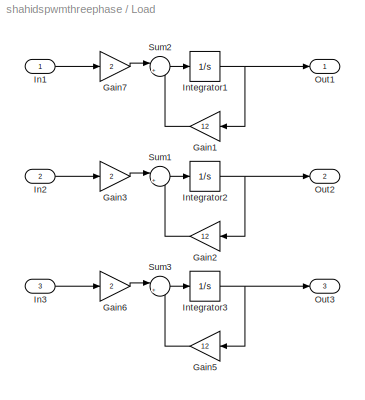
BLOCK [SubSystem] Load
  FunctionWithSeparateData = off
  MaskHideContents = off
  MinAlgLoopOccurrences = off
  Opaque = off
  Ports = [3, 3]
  PropExecContextOutsideSubsystem = off
  RTWSystemCode = Auto
  RequestExecContextInheritance = off
  SID = 441
BLOCK [Gain] Load/Gain1
  Gain = 12
  OutDataType = fixdt(1, 16)
  OutDataTypeMode = Inherit via internal rule
  OutDataTypeStr = Inherit: Inherit via internal rule
  OutScaling = 2^0
  ParamDataTypeStr = Inherit: Inherit via internal rule
  ParameterDataType = fixdt(1, 16)
  ParameterDataTypeMode = Inherit via internal rule
  ParameterScaling = 2^0
  SID = 444
  SaturateOnIntegerOverflow = off
BLOCK [Gain] Load/Gain2
  Gain = 12
  OutDataType = fixdt(1, 16)
  OutDataTypeMode = Inherit via internal rule
  OutDataTypeStr = Inherit: Inherit via internal rule
  OutScaling = 2^0
  ParamDataTypeStr = Inherit: Inherit via internal rule
  ParameterDataType = fixdt(1, 16)
  ParameterDataTypeMode = Inherit via internal rule
  ParameterScaling = 2^0
  SID = 449
  SaturateOnIntegerOverflow = off
BLOCK [Gain] Load/Gain3
  Gain = 2
  OutDataType = fixdt(1, 16)
  OutDataTypeMode = Inherit via internal rule
  OutDataTypeStr = Inherit: Inherit via internal rule
  OutScaling = 2^0
  ParamDataTypeStr = Inherit: Inherit via internal rule
  ParameterDataType = fixdt(1, 16)
  ParameterDataTypeMode = Inherit via internal rule
  ParameterScaling = 2^0
  SID = 450
  SaturateOnIntegerOverflow = off
BLOCK [Gain] Load/Gain5
  Gain = 12
  OutDataType = fixdt(1, 16)
  OutDataTypeMode = Inherit via internal rule
  OutDataTypeStr = Inherit: Inherit via internal rule
  OutScaling = 2^0
  ParamDataTypeStr = Inherit: Inherit via internal rule
  ParameterDataType = fixdt(1, 16)
  ParameterDataTypeMode = Inherit via internal rule
  ParameterScaling = 2^0
  SID = 455
  SaturateOnIntegerOverflow = off
BLOCK [Gain] Load/Gain6
  Gain = 2
  OutDataType = fixdt(1, 16)
  OutDataTypeMode = Inherit via internal rule
  OutDataTypeStr = Inherit: Inherit via internal rule
  OutScaling = 2^0
  ParamDataTypeStr = Inherit: Inherit via internal rule
  ParameterDataType = fixdt(1, 16)
  ParameterDataTypeMode = Inherit via internal rule
  ParameterScaling = 2^0
  SID = 456
  SaturateOnIntegerOverflow = off
BLOCK [Gain] Load/Gain7
  Gain = 2
  OutDataType = fixdt(1, 16)
  OutDataTypeMode = Inherit via internal rule
  OutDataTypeStr = Inherit: Inherit via internal rule
  OutScaling = 2^0
  ParamDataTypeStr = Inherit: Inherit via internal rule
  ParameterDataType = fixdt(1, 16)
  ParameterDataTypeMode = Inherit via internal rule
  ParameterScaling = 2^0
  SID = 445
  SaturateOnIntegerOverflow = off
BLOCK [Inport] Load/In1
  IconDisplay = Port number
  OutDataType = fixdt(1, 16)
  OutScaling = 2^0
  SID = 442
BLOCK [Inport] Load/In2
  IconDisplay = Port number
  OutDataType = fixdt(1, 16)
  OutScaling = 2^0
  Port = 2
  SID = 448
BLOCK [Inport] Load/In3
  IconDisplay = Port number
  OutDataType = fixdt(1, 16)
  OutScaling = 2^0
  Port = 3
  SID = 454
BLOCK [Integrator] Load/Integrator1
  Ports = [1, 1]
  SID = 446
BLOCK [Integrator] Load/Integrator2
  Ports = [1, 1]
  SID = 451
BLOCK [Integrator] Load/Integrator3
  Ports = [1, 1]
  SID = 457
BLOCK [Outport] Load/Out1
  IconDisplay = Port number
  OutDataType = fixdt(1, 16)
  OutScaling = 2^0
  SID = 443
BLOCK [Outport] Load/Out2
  IconDisplay = Port number
  OutDataType = fixdt(1, 16)
  OutScaling = 2^0
  Port = 2
  SID = 453
BLOCK [Outport] Load/Out3
  IconDisplay = Port number
  OutDataType = fixdt(1, 16)
  OutScaling = 2^0
  Port = 3
  SID = 459
BLOCK [Sum] Load/Sum1
  IconShape = round
  InputSameDT = off
  Inputs = |+-
  OutDataType = fixdt(1, 16)
  OutDataTypeMode = Inherit via internal rule
  OutDataTypeStr = Inherit: Inherit via internal rule
  OutScaling = 2^0
  Ports = [2, 1]
  SID = 452
  SaturateOnIntegerOverflow = off
BLOCK [Sum] Load/Sum2
  IconShape = round
  InputSameDT = off
  Inputs = |+-
  OutDataType = fixdt(1, 16)
  OutDataTypeMode = Inherit via internal rule
  OutDataTypeStr = Inherit: Inherit via internal rule
  OutScaling = 2^0
  Ports = [2, 1]
  SID = 447
  SaturateOnIntegerOverflow = off
BLOCK [Sum] Load/Sum3
  IconShape = round
  InputSameDT = off
  Inputs = |+-
  OutDataType = fixdt(1, 16)
  OutDataTypeMode = Inherit via internal rule
  OutDataTypeStr = Inherit: Inherit via internal rule
  OutScaling = 2^0
  Ports = [2, 1]
  SID = 458
  SaturateOnIntegerOverflow = off
BLOCK [From] M1
  GotoTag = Q1
  SID = 84
BLOCK [From] M2
  GotoTag = Q3
  SID = 342
BLOCK [From] M3
  GotoTag = Q5
  SID = 343
BLOCK [From] M4
  GotoTag = Q4
  SID = 344
BLOCK [From] M5
  GotoTag = Q6
  SID = 345
BLOCK [From] M6
  GotoTag = Q2
  SID = 346
BLOCK [Reference] Mosfet  REF=powerlib/Power\nElectronics/Mosfet
  Cs = inf
  DialogController = POWERSYS.PowerSysDialog
  FunctionWithSeparateData = off
  IC = 0
  Lon = 0
  Measurements = off
  Ports = [1, 0, 0, 0, 0, 1, 1]
  RTWMemSecDataConstants = Inherit from model
  RTWMemSecDataInternal = Inherit from model
  RTWMemSecDataParameters = Inherit from model
  RTWMemSecFuncExecute = Inherit from model
  RTWMemSecFuncInitTerm = Inherit from model
  Rd = 0.01
  Ron = 0.01
  Rs = 1e5
  SID = 36
  ShowPortLabels = FromPortIcon
  SourceBlock = powerlib/Power\nElectronics/Mosfet
  SourceType = Mosfet
  SystemSampleTime = -1
  Vfd = 0
BLOCK [Reference] Mosfet1  REF=powerlib/Power\nElectronics/Mosfet
  Cs = inf
  DialogController = POWERSYS.PowerSysDialog
  FunctionWithSeparateData = off
  IC = 0
  Lon = 0
  Measurements = off
  Ports = [1, 0, 0, 0, 0, 1, 1]
  RTWMemSecDataConstants = Inherit from model
  RTWMemSecDataInternal = Inherit from model
  RTWMemSecDataParameters = Inherit from model
  RTWMemSecFuncExecute = Inherit from model
  RTWMemSecFuncInitTerm = Inherit from model
  Rd = 0.01
  Ron = 0.01
  Rs = 1e5
  SID = 37
  ShowPortLabels = FromPortIcon
  SourceBlock = powerlib/Power\nElectronics/Mosfet
  SourceType = Mosfet
  SystemSampleTime = -1
  Vfd = 0
BLOCK [Reference] Mosfet2  REF=powerlib/Power\nElectronics/Mosfet
  Cs = inf
  DialogController = POWERSYS.PowerSysDialog
  FunctionWithSeparateData = off
  IC = 0
  Lon = 0
  Measurements = off
  Ports = [1, 0, 0, 0, 0, 1, 1]
  RTWMemSecDataConstants = Inherit from model
  RTWMemSecDataInternal = Inherit from model
  RTWMemSecDataParameters = Inherit from model
  RTWMemSecFuncExecute = Inherit from model
  RTWMemSecFuncInitTerm = Inherit from model
  Rd = 0.01
  Ron = 0.01
  Rs = 1e5
  SID = 38
  ShowPortLabels = FromPortIcon
  SourceBlock = powerlib/Power\nElectronics/Mosfet
  SourceType = Mosfet
  SystemSampleTime = -1
  Vfd = 0
BLOCK [Reference] Mosfet3  REF=powerlib/Power\nElectronics/Mosfet
  Cs = inf
  DialogController = POWERSYS.PowerSysDialog
  FunctionWithSeparateData = off
  IC = 0
  Lon = 0
  Measurements = off
  Ports = [1, 0, 0, 0, 0, 1, 1]
  RTWMemSecDataConstants = Inherit from model
  RTWMemSecDataInternal = Inherit from model
  RTWMemSecDataParameters = Inherit from model
  RTWMemSecFuncExecute = Inherit from model
  RTWMemSecFuncInitTerm = Inherit from model
  Rd = 0.01
  Ron = 0.01
  Rs = 1e5
  SID = 39
  ShowPortLabels = FromPortIcon
  SourceBlock = powerlib/Power\nElectronics/Mosfet
  SourceType = Mosfet
  SystemSampleTime = -1
  Vfd = 0
BLOCK [Reference] Mosfet4  REF=powerlib/Power\nElectronics/Mosfet
  Cs = inf
  DialogController = POWERSYS.PowerSysDialog
  FunctionWithSeparateData = off
  IC = 0
  Lon = 0
  Measurements = off
  Ports = [1, 0, 0, 0, 0, 1, 1]
  RTWMemSecDataConstants = Inherit from model
  RTWMemSecDataInternal = Inherit from model
  RTWMemSecDataParameters = Inherit from model
  RTWMemSecFuncExecute = Inherit from model
  RTWMemSecFuncInitTerm = Inherit from model
  Rd = 0.01
  Ron = 0.01
  Rs = 1e5
  SID = 336
  ShowPortLabels = FromPortIcon
  SourceBlock = powerlib/Power\nElectronics/Mosfet
  SourceType = Mosfet
  SystemSampleTime = -1
  Vfd = 0
BLOCK [Reference] Mosfet5  REF=powerlib/Power\nElectronics/Mosfet
  Cs = inf
  DialogController = POWERSYS.PowerSysDialog
  FunctionWithSeparateData = off
  IC = 0
  Lon = 0
  Measurements = off
  Ports = [1, 0, 0, 0, 0, 1, 1]
  RTWMemSecDataConstants = Inherit from model
  RTWMemSecDataInternal = Inherit from model
  RTWMemSecDataParameters = Inherit from model
  RTWMemSecFuncExecute = Inherit from model
  RTWMemSecFuncInitTerm = Inherit from model
  Rd = 0.01
  Ron = 0.01
  Rs = 1e5
  SID = 337
  ShowPortLabels = FromPortIcon
  SourceBlock = powerlib/Power\nElectronics/Mosfet
  SourceType = Mosfet
  SystemSampleTime = -1
  Vfd = 0
BLOCK [Mux] Mux
  DisplayOption = bar
  Inputs = 3
  Ports = [3, 1]
  SID = 461
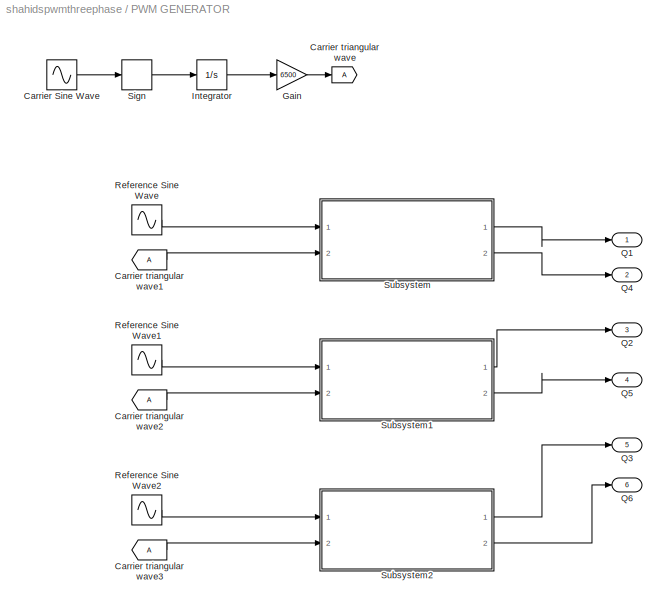
BLOCK [SubSystem] PWM GENERATOR
  FunctionWithSeparateData = off
  MaskHideContents = off
  MinAlgLoopOccurrences = off
  Opaque = off
  Ports = [0, 6]
  PropExecContextOutsideSubsystem = off
  RTWSystemCode = Auto
  RequestExecContextInheritance = off
  SID = 61
BLOCK [Sin] PWM GENERATOR/Carrier Sine Wave
  Amplitude = 1
  Bias = 0
  Frequency = 2*pi*3000
  Offset = 0
  Phase = 0
  Ports = [0, 1]
  SID = 78
  SampleTime = 0
  Samples = 10
BLOCK [Goto] PWM GENERATOR/Carrier triangular wave
  GotoTag = A
  SID = 140
  TagVisibility = local
BLOCK [From] PWM GENERATOR/Carrier triangular wave1
  GotoTag = A
  SID = 321
BLOCK [From] PWM GENERATOR/Carrier triangular wave2
  GotoTag = A
  SID = 322
BLOCK [From] PWM GENERATOR/Carrier triangular wave3
  GotoTag = A
  SID = 323
BLOCK [Gain] PWM GENERATOR/Gain
  Gain = 6500
  OutDataType = fixdt(1, 16)
  OutDataTypeMode = Inherit via internal rule
  OutDataTypeStr = Inherit: Inherit via internal rule
  OutScaling = 2^0
  ParamDataTypeStr = Inherit: Inherit via internal rule
  ParameterDataType = fixdt(1, 16)
  ParameterDataTypeMode = Inherit via internal rule
  ParameterScaling = 2^0
  SID = 67
  SaturateOnIntegerOverflow = off
BLOCK [Integrator] PWM GENERATOR/Integrator
  Ports = [1, 1]
  SID = 68
BLOCK [Outport] PWM GENERATOR/Q1
  IconDisplay = Port number
  OutDataType = fixdt(1, 16)
  OutScaling = 2^0
  SID = 324
BLOCK [Outport] PWM GENERATOR/Q2
  IconDisplay = Port number
  OutDataType = fixdt(1, 16)
  OutScaling = 2^0
  Port = 3
  SID = 402
BLOCK [Outport] PWM GENERATOR/Q3
  IconDisplay = Port number
  OutDataType = fixdt(1, 16)
  OutScaling = 2^0
  Port = 5
  SID = 327
BLOCK [Outport] PWM GENERATOR/Q4
  IconDisplay = Port number
  OutDataType = fixdt(1, 16)
  OutScaling = 2^0
  Port = 2
  SID = 326
BLOCK [Outport] PWM GENERATOR/Q5
  IconDisplay = Port number
  OutDataType = fixdt(1, 16)
  OutScaling = 2^0
  Port = 4
  SID = 325
BLOCK [Outport] PWM GENERATOR/Q6
  IconDisplay = Port number
  OutDataType = fixdt(1, 16)
  OutScaling = 2^0
  Port = 6
  SID = 403
BLOCK [Sin] PWM GENERATOR/Reference Sine Wave
  Amplitude = 1
  Bias = 0
  Frequency = 2*pi*50
  Offset = 0
  Phase = 0
  Ports = [0, 1]
  SID = 77
  SampleTime = 0
  Samples = 10
BLOCK [Sin] PWM GENERATOR/Reference Sine Wave1
  Amplitude = 1
  Bias = 0
  Frequency = 2*pi*50
  Offset = 0
  Phase = -pi/3
  Ports = [0, 1]
  SID = 319
  SampleTime = 0
  Samples = 10
BLOCK [Sin] PWM GENERATOR/Reference Sine Wave2
  Amplitude = 1
  Bias = 0
  Frequency = 2*pi*50
  Offset = 0
  Phase = -2*pi/3
  Ports = [0, 1]
  SID = 320
  SampleTime = 0
  Samples = 10
BLOCK [Signum] PWM GENERATOR/Sign
  SID = 76
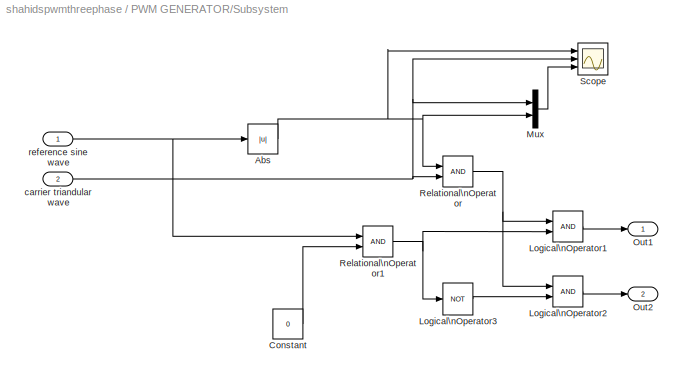
BLOCK [SubSystem] PWM GENERATOR/Subsystem
  FunctionWithSeparateData = off
  MaskHideContents = off
  MinAlgLoopOccurrences = off
  Opaque = off
  Ports = [2, 2]
  PropExecContextOutsideSubsystem = off
  RTWSystemCode = Auto
  RequestExecContextInheritance = off
  SID = 274
BLOCK [Abs] PWM GENERATOR/Subsystem/Abs
  OutDataType = fixdt(1, 16)
  OutScaling = 2^0
  SID = 277
  SaturateOnIntegerOverflow = off
BLOCK [Constant] PWM GENERATOR/Subsystem/Constant
  OutDataType = fixdt(1, 16)
  OutScaling = 2^0
  SID = 279
  Value = 0
BLOCK [Logic] PWM GENERATOR/Subsystem/Logical\nOperator1
  AllPortsSameDT = off
  LogicDataType = fixdt(0, 8)
  OutDataTypeMode = boolean
  OutDataTypeStr = boolean
  Ports = [2, 1]
  SID = 280
BLOCK [Logic] PWM GENERATOR/Subsystem/Logical\nOperator2
  AllPortsSameDT = off
  LogicDataType = fixdt(0, 8)
  OutDataTypeMode = boolean
  OutDataTypeStr = boolean
  Ports = [2, 1]
  SID = 281
BLOCK [Logic] PWM GENERATOR/Subsystem/Logical\nOperator3
  AllPortsSameDT = off
  LogicDataType = fixdt(0, 8)
  Operator = NOT
  OutDataTypeMode = boolean
  OutDataTypeStr = boolean
  Ports = [1, 1]
  SID = 282
BLOCK [Mux] PWM GENERATOR/Subsystem/Mux
  DisplayOption = bar
  Inputs = 2
  Ports = [2, 1]
  SID = 283
BLOCK [Outport] PWM GENERATOR/Subsystem/Out1
  IconDisplay = Port number
  OutDataType = fixdt(1, 16)
  OutScaling = 2^0
  SID = 288
BLOCK [Outport] PWM GENERATOR/Subsystem/Out2
  IconDisplay = Port number
  OutDataType = fixdt(1, 16)
  OutScaling = 2^0
  Port = 2
  SID = 289
BLOCK [RelationalOperator] PWM GENERATOR/Subsystem/Relational\nOperator
  LogicDataType = fixdt(1,16)
  Ports = [2, 1]
  SID = 285
BLOCK [RelationalOperator] PWM GENERATOR/Subsystem/Relational\nOperator1
  LogicDataType = fixdt(1,16)
  Ports = [2, 1]
  SID = 286
BLOCK [Scope] PWM GENERATOR/Subsystem/Scope
  DataFormat = StructureWithTime
  Floating = off
  NumInputPorts = 3
  Ports = [3]
  SID = 287
  SampleTime = 0
  SaveName = ScopeData10
  TickLabels = on
  TimeRange = 3
  YMax = 1~1.1~1.1
  YMin = 5.55112e-017~-0.1~-0.1
  ZoomMode = xonly
BLOCK [Inport] PWM GENERATOR/Subsystem/carrier triandular wave
  IconDisplay = Port number
  OutDataType = fixdt(1, 16)
  OutScaling = 2^0
  Port = 2
  SID = 290
BLOCK [Inport] PWM GENERATOR/Subsystem/reference sine wave
  IconDisplay = Port number
  OutDataType = fixdt(1, 16)
  OutScaling = 2^0
  SID = 275
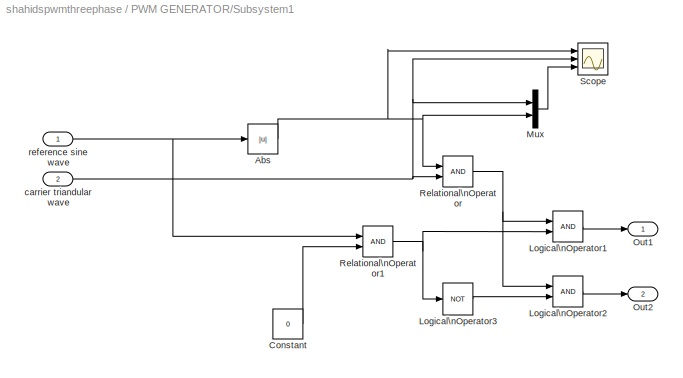
BLOCK [SubSystem] PWM GENERATOR/Subsystem1
  FunctionWithSeparateData = off
  MaskHideContents = off
  MinAlgLoopOccurrences = off
  Opaque = off
  Ports = [2, 2]
  PropExecContextOutsideSubsystem = off
  RTWSystemCode = Auto
  RequestExecContextInheritance = off
  SID = 291
BLOCK [Abs] PWM GENERATOR/Subsystem1/Abs
  OutDataType = fixdt(1, 16)
  OutScaling = 2^0
  SID = 294
  SaturateOnIntegerOverflow = off
BLOCK [Constant] PWM GENERATOR/Subsystem1/Constant
  OutDataType = fixdt(1, 16)
  OutScaling = 2^0
  SID = 295
  Value = 0
BLOCK [Logic] PWM GENERATOR/Subsystem1/Logical\nOperator1
  AllPortsSameDT = off
  LogicDataType = fixdt(0, 8)
  OutDataTypeMode = boolean
  OutDataTypeStr = boolean
  Ports = [2, 1]
  SID = 296
BLOCK [Logic] PWM GENERATOR/Subsystem1/Logical\nOperator2
  AllPortsSameDT = off
  LogicDataType = fixdt(0, 8)
  OutDataTypeMode = boolean
  OutDataTypeStr = boolean
  Ports = [2, 1]
  SID = 297
BLOCK [Logic] PWM GENERATOR/Subsystem1/Logical\nOperator3
  AllPortsSameDT = off
  LogicDataType = fixdt(0, 8)
  Operator = NOT
  OutDataTypeMode = boolean
  OutDataTypeStr = boolean
  Ports = [1, 1]
  SID = 298
BLOCK [Mux] PWM GENERATOR/Subsystem1/Mux
  DisplayOption = bar
  Inputs = 2
  Ports = [2, 1]
  SID = 299
BLOCK [Outport] PWM GENERATOR/Subsystem1/Out1
  IconDisplay = Port number
  OutDataType = fixdt(1, 16)
  OutScaling = 2^0
  SID = 303
BLOCK [Outport] PWM GENERATOR/Subsystem1/Out2
  IconDisplay = Port number
  OutDataType = fixdt(1, 16)
  OutScaling = 2^0
  Port = 2
  SID = 304
BLOCK [RelationalOperator] PWM GENERATOR/Subsystem1/Relational\nOperator
  LogicDataType = fixdt(1,16)
  Ports = [2, 1]
  SID = 300
BLOCK [RelationalOperator] PWM GENERATOR/Subsystem1/Relational\nOperator1
  LogicDataType = fixdt(1,16)
  Ports = [2, 1]
  SID = 301
BLOCK [Scope] PWM GENERATOR/Subsystem1/Scope
  DataFormat = StructureWithTime
  Floating = off
  NumInputPorts = 3
  Ports = [3]
  SID = 302
  SampleTime = 0
  SaveName = ScopeData10
  TickLabels = on
  TimeRange = 3
  YMax = 1~1.1~1.1
  YMin = 5.55112e-017~-0.1~-0.1
  ZoomMode = xonly
BLOCK [Inport] PWM GENERATOR/Subsystem1/carrier triandular wave
  IconDisplay = Port number
  OutDataType = fixdt(1, 16)
  OutScaling = 2^0
  Port = 2
  SID = 293
BLOCK [Inport] PWM GENERATOR/Subsystem1/reference sine wave
  IconDisplay = Port number
  OutDataType = fixdt(1, 16)
  OutScaling = 2^0
  SID = 292
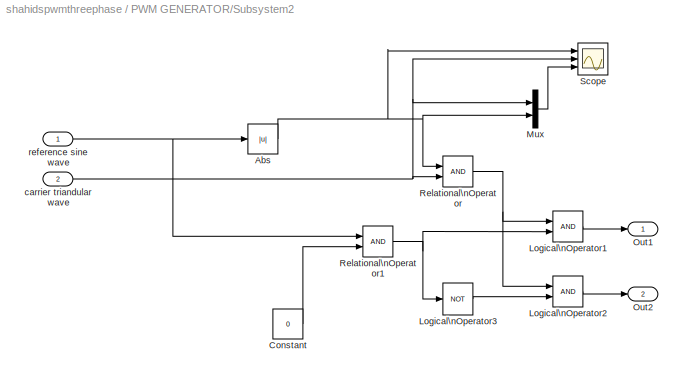
BLOCK [SubSystem] PWM GENERATOR/Subsystem2
  FunctionWithSeparateData = off
  MaskHideContents = off
  MinAlgLoopOccurrences = off
  Opaque = off
  Ports = [2, 2]
  PropExecContextOutsideSubsystem = off
  RTWSystemCode = Auto
  RequestExecContextInheritance = off
  SID = 305
BLOCK [Abs] PWM GENERATOR/Subsystem2/Abs
  OutDataType = fixdt(1, 16)
  OutScaling = 2^0
  SID = 308
  SaturateOnIntegerOverflow = off
BLOCK [Constant] PWM GENERATOR/Subsystem2/Constant
  OutDataType = fixdt(1, 16)
  OutScaling = 2^0
  SID = 309
  Value = 0
BLOCK [Logic] PWM GENERATOR/Subsystem2/Logical\nOperator1
  AllPortsSameDT = off
  LogicDataType = fixdt(0, 8)
  OutDataTypeMode = boolean
  OutDataTypeStr = boolean
  Ports = [2, 1]
  SID = 310
BLOCK [Logic] PWM GENERATOR/Subsystem2/Logical\nOperator2
  AllPortsSameDT = off
  LogicDataType = fixdt(0, 8)
  OutDataTypeMode = boolean
  OutDataTypeStr = boolean
  Ports = [2, 1]
  SID = 311
BLOCK [Logic] PWM GENERATOR/Subsystem2/Logical\nOperator3
  AllPortsSameDT = off
  LogicDataType = fixdt(0, 8)
  Operator = NOT
  OutDataTypeMode = boolean
  OutDataTypeStr = boolean
  Ports = [1, 1]
  SID = 312
BLOCK [Mux] PWM GENERATOR/Subsystem2/Mux
  DisplayOption = bar
  Inputs = 2
  Ports = [2, 1]
  SID = 313
BLOCK [Outport] PWM GENERATOR/Subsystem2/Out1
  IconDisplay = Port number
  OutDataType = fixdt(1, 16)
  OutScaling = 2^0
  SID = 317
BLOCK [Outport] PWM GENERATOR/Subsystem2/Out2
  IconDisplay = Port number
  OutDataType = fixdt(1, 16)
  OutScaling = 2^0
  Port = 2
  SID = 318
BLOCK [RelationalOperator] PWM GENERATOR/Subsystem2/Relational\nOperator
  LogicDataType = fixdt(1,16)
  Ports = [2, 1]
  SID = 314
BLOCK [RelationalOperator] PWM GENERATOR/Subsystem2/Relational\nOperator1
  LogicDataType = fixdt(1,16)
  Ports = [2, 1]
  SID = 315
BLOCK [Scope] PWM GENERATOR/Subsystem2/Scope
  DataFormat = StructureWithTime
  Floating = off
  NumInputPorts = 3
  Ports = [3]
  SID = 316
  SampleTime = 0
  SaveName = ScopeData10
  TickLabels = on
  TimeRange = 3
  YMax = 1~1.1~1.1
  YMin = 5.55112e-017~-0.1~-0.1
  ZoomMode = xonly
BLOCK [Inport] PWM GENERATOR/Subsystem2/carrier triandular wave
  IconDisplay = Port number
  OutDataType = fixdt(1, 16)
  OutScaling = 2^0
  Port = 2
  SID = 307
BLOCK [Inport] PWM GENERATOR/Subsystem2/reference sine wave
  IconDisplay = Port number
  OutDataType = fixdt(1, 16)
  OutScaling = 2^0
  SID = 306
BLOCK [Reference] RMS  REF=powerlib_extras/Measurements/RMS
  DialogController = POWERSYS.PowerSysDialog
  FunctionWithSeparateData = off
  Ports = [1, 1]
  RTWMemSecDataConstants = Inherit from model
  RTWMemSecDataInternal = Inherit from model
  RTWMemSecDataParameters = Inherit from model
  RTWMemSecFuncExecute = Inherit from model
  RTWMemSecFuncInitTerm = Inherit from model
  SID = 236
  ShowPortLabels = FromPortIcon
  SourceBlock = powerlib_extras/Measurements/RMS
  SourceType = RMS
  SystemSampleTime = -1
  f1 = 50
BLOCK [Reference] RMS1  REF=powerlib_extras/Measurements/RMS
  DialogController = POWERSYS.PowerSysDialog
  FunctionWithSeparateData = off
  Ports = [1, 1]
  RTWMemSecDataConstants = Inherit from model
  RTWMemSecDataInternal = Inherit from model
  RTWMemSecDataParameters = Inherit from model
  RTWMemSecFuncExecute = Inherit from model
  RTWMemSecFuncInitTerm = Inherit from model
  SID = 490
  ShowPortLabels = FromPortIcon
  SourceBlock = powerlib_extras/Measurements/RMS
  SourceType = RMS
  SystemSampleTime = -1
  f1 = 50
BLOCK [Scope] Scope
  DataFormat = StructureWithTime
  Floating = off
  NumInputPorts = 1
  Ports = [1]
  SID = 462
  SampleTime = 0
  SaveName = ScopeData2
  YMax = 1.2
  YMin = -1
BLOCK [Reference] Total Harmonic\nDistortion  REF=powerlib_extras/Measurements/Total Harmonic\nDistortion
  DialogController = POWERSYS.PowerSysDialog
  FunctionWithSeparateData = off
  Ports = [1, 1]
  RTWMemSecDataConstants = Inherit from model
  RTWMemSecDataInternal = Inherit from model
  RTWMemSecDataParameters = Inherit from model
  RTWMemSecFuncExecute = Inherit from model
  RTWMemSecFuncInitTerm = Inherit from model
  SID = 235
  ShowPortLabels = FromPortIcon
  SourceBlock = powerlib_extras/Measurements/Total Harmonic\nDistortion
  SourceType = Total Harmonic Distortion
  SystemSampleTime = -1
  f1 = 50
BLOCK [Reference] Total Harmonic\nDistortion1  REF=powerlib_extras/Measurements/Total Harmonic\nDistortion
  DialogController = POWERSYS.PowerSysDialog
  FunctionWithSeparateData = off
  Ports = [1, 1]
  RTWMemSecDataConstants = Inherit from model
  RTWMemSecDataInternal = Inherit from model
  RTWMemSecDataParameters = Inherit from model
  RTWMemSecFuncExecute = Inherit from model
  RTWMemSecFuncInitTerm = Inherit from model
  SID = 491
  ShowPortLabels = FromPortIcon
  SourceBlock = powerlib_extras/Measurements/Total Harmonic\nDistortion
  SourceType = Total Harmonic Distortion
  SystemSampleTime = -1
  f1 = 50
BLOCK [Reference] Voltage Measurement1  REF=powerlib/Measurements/Voltage Measurement
  DialogController = POWERSYS.PowerSysDialog
  FunctionWithSeparateData = off
  OutputType = Complex
  PSBequivalent = 0
  PhasorSimulation = off
  Ports = [0, 1, 0, 0, 0, 2]
  RTWMemSecDataConstants = Inherit from model
  RTWMemSecDataInternal = Inherit from model
  RTWMemSecDataParameters = Inherit from model
  RTWMemSecFuncExecute = Inherit from model
  RTWMemSecFuncInitTerm = Inherit from model
  SID = 348
  ShowPortLabels = FromPortIcon
  SourceBlock = powerlib/Measurements/Voltage Measurement
  SourceType = Voltage Measurement
  SystemSampleTime = -1
BLOCK [Reference] Voltage Measurement2  REF=powerlib/Measurements/Voltage Measurement
  DialogController = POWERSYS.PowerSysDialog
  FunctionWithSeparateData = off
  OutputType = Complex
  PSBequivalent = 0
  PhasorSimulation = off
  Ports = [0, 1, 0, 0, 0, 2]
  RTWMemSecDataConstants = Inherit from model
  RTWMemSecDataInternal = Inherit from model
  RTWMemSecDataParameters = Inherit from model
  RTWMemSecFuncExecute = Inherit from model
  RTWMemSecFuncInitTerm = Inherit from model
  SID = 349
  ShowPortLabels = FromPortIcon
  SourceBlock = powerlib/Measurements/Voltage Measurement
  SourceType = Voltage Measurement
  SystemSampleTime = -1
BLOCK [Reference] Voltage Measurement4  REF=powerlib/Measurements/Voltage Measurement
  DialogController = POWERSYS.PowerSysDialog
  FunctionWithSeparateData = off
  OutputType = Complex
  PSBequivalent = 0
  PhasorSimulation = off
  Ports = [0, 1, 0, 0, 0, 2]
  RTWMemSecDataConstants = Inherit from model
  RTWMemSecDataInternal = Inherit from model
  RTWMemSecDataParameters = Inherit from model
  RTWMemSecFuncExecute = Inherit from model
  RTWMemSecFuncInitTerm = Inherit from model
  SID = 350
  ShowPortLabels = FromPortIcon
  SourceBlock = powerlib/Measurements/Voltage Measurement
  SourceType = Voltage Measurement
  SystemSampleTime = -1
BLOCK [Reference] powergui  REF=powerlib/powergui
  DisableRonSwitches = off
  DisableSnubberDevices = off
  DisableVfSwitches = off
  DisplayEquations = off
  DisplayStyle = 1
  EnableUseOfTLC = off
  FreqAxis = off
  FunctionMessages = off
  FunctionWithSeparateData = off
  HookPort = off
  Interpol = off
  MaxFrequency = 1000
  Ports = []
  Priority = 1
  RTWMemSecDataConstants = Inherit from model
  RTWMemSecDataInternal = Inherit from model
  RTWMemSecDataParameters = Inherit from model
  RTWMemSecFuncExecute = Inherit from model
  RTWMemSecFuncInitTerm = Inherit from model
  ResistiveCurrentMeasurement = off
  RestoreLinks = warning
  SID = 270
  SPID = off
  SampleTime = 50e-6
  ShowGrid = off
  ShowPortLabels = FromPortIcon
  SourceBlock = powerlib/powergui
  SourceType = PSB option menu block
  StartTime = 0.0
  SwTol = 0
  SystemSampleTime = -1
  UserDataPersistent = on
  Xlog = on
  Ylog = off
  ZoomFFT = off
  cycles = 1
  display = off
  echomessages = off
  frequency = 60
  frequencyindice = 0
  frequencyindicesteady = 1
  methode = off
  save = off
  variable = ZData
  x0status = blocks
BLOCK [Scope] scope
  DataFormat = StructureWithTime
  Floating = off
  NumInputPorts = 6
  Ports = [6]
  SID = 90
  SampleTime = 0
  SaveName = ScopeData1
  YMax = 1~1~1~1~1~1
  YMin = 0~0~0~0~0~0
  ZoomMode = xonly
BLOCK [Scope] scope1
  DataFormat = StructureWithTime
  Floating = off
  NumInputPorts = 2
  Ports = [2]
  SID = 238
  SampleTime = 0
  SaveName = ScopeData3
  YMax = 0.8~150
  YMin = -0.8~-150
  ZoomMode = xonly
BLOCK [Scope] scope2
  DataFormat = StructureWithTime
  Floating = off
  NumInputPorts = 1
  Ports = [1]
  SID = 240
  SampleTime = 0
  SaveName = ScopeData4
  YMax = 1
  YMin = -1
  ZoomMode = xonly
BLOCK [Scope] scope3
  DataFormat = StructureWithTime
  Floating = off
  NumInputPorts = 1
  Ports = [1]
  SID = 242
  SampleTime = 0
  SaveName = ScopeData5
  YMax = 72.241
  YMin = 72.241
  ZoomMode = xonly
BLOCK [Scope] scope4
  DataFormat = StructureWithTime
  Floating = off
  NumInputPorts = 2
  Ports = [2]
  SID = 492
  SampleTime = 0
  SaveName = ScopeData7
  YMax = 0.8~150
  YMin = -0.8~-150
  ZoomMode = xonly
BLOCK [Scope] scope5
  DataFormat = StructureWithTime
  Floating = off
  NumInputPorts = 1
  Ports = [1]
  SID = 493
  SampleTime = 0
  SaveName = ScopeData8
  YMax = 1
  YMin = -1
  ZoomMode = xonly
BLOCK [Scope] scope6
  DataFormat = StructureWithTime
  Floating = off
  NumInputPorts = 1
  Ports = [1]
  SID = 494
  SampleTime = 0
  SaveName = ScopeData9
  YMax = 75.853
  YMin = 68.629
  ZoomMode = xonly
BLOCK [Scope] voltage 
  DataFormat = StructureWithTime
  Floating = off
  NumInputPorts = 3
  Ports = [3]
  SID = 355
  SampleTime = 0
  SaveName = ScopeData6
  YMax = 150~1~5
  YMin = -150~-1~-5
  ZoomMode = xonly
ANNOTATION (root): SPWM Inverter by Shahid Rabbani\nHITEC University Taxila\<email>
LINE Fourier1:1 -> scope4:1
LINE Fourier1:2 -> scope4:2
LINE Fourier:1 -> scope1:1
LINE Fourier:2 -> scope1:2
LINE From1:1 -> Fourier:1
LINE From2:1 -> Total Harmonic\nDistortion:1
LINE From3:1 -> RMS:1
LINE From4:1 -> Fourier1:1
LINE From5:1 -> Total Harmonic\nDistortion1:1
LINE From6:1 -> RMS1:1
LINE Load/Gain1:1 -> Load/Sum2:2
LINE Load/Gain2:1 -> Load/Sum1:2
LINE Load/Gain3:1 -> Load/Sum1:1
LINE Load/Gain5:1 -> Load/Sum3:2
LINE Load/Gain6:1 -> Load/Sum3:1
LINE Load/Gain7:1 -> Load/Sum2:1
LINE Load/In1:1 -> Load/Gain7:1
LINE Load/In2:1 -> Load/Gain3:1
LINE Load/In3:1 -> Load/Gain6:1
NET Load/Integrator1:1 -> Load/Gain1:1, Load/Out1:1
NET Load/Integrator2:1 -> Load/Gain2:1, Load/Out2:1
NET Load/Integrator3:1 -> Load/Gain5:1, Load/Out3:1
LINE Load/Sum1:1 -> Load/Integrator2:1
LINE Load/Sum2:1 -> Load/Integrator1:1
LINE Load/Sum3:1 -> Load/Integrator3:1
NET Load:1 ->  current:1, Goto1:1, Mux:3
NET Load:2 ->  current:2, Mux:2
NET Load:3 ->  current:3, Mux:1
LINE M1:1 -> Mosfet1:1
LINE M2:1 -> Mosfet2:1
LINE M3:1 -> Mosfet4:1
LINE M4:1 -> Mosfet:1
LINE M5:1 -> Mosfet3:1
LINE M6:1 -> Mosfet5:1
LINE Mux:1 -> Scope:1
LINE PWM GENERATOR/Carrier Sine Wave:1 -> PWM GENERATOR/Sign:1
LINE PWM GENERATOR/Carrier triangular wave1:1 -> PWM GENERATOR/Subsystem:2
LINE PWM GENERATOR/Carrier triangular wave2:1 -> PWM GENERATOR/Subsystem1:2
LINE PWM GENERATOR/Carrier triangular wave3:1 -> PWM GENERATOR/Subsystem2:2
LINE PWM GENERATOR/Gain:1 -> PWM GENERATOR/Carrier triangular wave:1
LINE PWM GENERATOR/Integrator:1 -> PWM GENERATOR/Gain:1
LINE PWM GENERATOR/Reference Sine Wave1:1 -> PWM GENERATOR/Subsystem1:1
LINE PWM GENERATOR/Reference Sine Wave2:1 -> PWM GENERATOR/Subsystem2:1
LINE PWM GENERATOR/Reference Sine Wave:1 -> PWM GENERATOR/Subsystem:1
LINE PWM GENERATOR/Sign:1 -> PWM GENERATOR/Integrator:1
NET PWM GENERATOR/Subsystem/Abs:1 -> PWM GENERATOR/Subsystem/Mux:2, PWM GENERATOR/Subsystem/Relational\nOperator:1, PWM GENERATOR/Subsystem/Scope:1
LINE PWM GENERATOR/Subsystem/Constant:1 -> PWM GENERATOR/Subsystem/Relational\nOperator1:2
LINE PWM GENERATOR/Subsystem/Logical\nOperator1:1 -> PWM GENERATOR/Subsystem/Out1:1
LINE PWM GENERATOR/Subsystem/Logical\nOperator2:1 -> PWM GENERATOR/Subsystem/Out2:1
LINE PWM GENERATOR/Subsystem/Logical\nOperator3:1 -> PWM GENERATOR/Subsystem/Logical\nOperator2:2
LINE PWM GENERATOR/Subsystem/Mux:1 -> PWM GENERATOR/Subsystem/Scope:3
NET PWM GENERATOR/Subsystem/Relational\nOperator1:1 -> PWM GENERATOR/Subsystem/Logical\nOperator1:2, PWM GENERATOR/Subsystem/Logical\nOperator3:1
NET PWM GENERATOR/Subsystem/Relational\nOperator:1 -> PWM GENERATOR/Subsystem/Logical\nOperator1:1, PWM GENERATOR/Subsystem/Logical\nOperator2:1
NET PWM GENERATOR/Subsystem/carrier triandular wave:1 -> PWM GENERATOR/Subsystem/Mux:1, PWM GENERATOR/Subsystem/Relational\nOperator:2, PWM GENERATOR/Subsystem/Scope:2
NET PWM GENERATOR/Subsystem/reference sine wave:1 -> PWM GENERATOR/Subsystem/Abs:1, PWM GENERATOR/Subsystem/Relational\nOperator1:1
NET PWM GENERATOR/Subsystem1/Abs:1 -> PWM GENERATOR/Subsystem1/Mux:2, PWM GENERATOR/Subsystem1/Relational\nOperator:1, PWM GENERATOR/Subsystem1/Scope:1
LINE PWM GENERATOR/Subsystem1/Constant:1 -> PWM GENERATOR/Subsystem1/Relational\nOperator1:2
LINE PWM GENERATOR/Subsystem1/Logical\nOperator1:1 -> PWM GENERATOR/Subsystem1/Out1:1
LINE PWM GENERATOR/Subsystem1/Logical\nOperator2:1 -> PWM GENERATOR/Subsystem1/Out2:1
LINE PWM GENERATOR/Subsystem1/Logical\nOperator3:1 -> PWM GENERATOR/Subsystem1/Logical\nOperator2:2
LINE PWM GENERATOR/Subsystem1/Mux:1 -> PWM GENERATOR/Subsystem1/Scope:3
NET PWM GENERATOR/Subsystem1/Relational\nOperator1:1 -> PWM GENERATOR/Subsystem1/Logical\nOperator1:2, PWM GENERATOR/Subsystem1/Logical\nOperator3:1
NET PWM GENERATOR/Subsystem1/Relational\nOperator:1 -> PWM GENERATOR/Subsystem1/Logical\nOperator1:1, PWM GENERATOR/Subsystem1/Logical\nOperator2:1
NET PWM GENERATOR/Subsystem1/carrier triandular wave:1 -> PWM GENERATOR/Subsystem1/Mux:1, PWM GENERATOR/Subsystem1/Relational\nOperator:2, PWM GENERATOR/Subsystem1/Scope:2
NET PWM GENERATOR/Subsystem1/reference sine wave:1 -> PWM GENERATOR/Subsystem1/Abs:1, PWM GENERATOR/Subsystem1/Relational\nOperator1:1
LINE PWM GENERATOR/Subsystem1:1 -> PWM GENERATOR/Q2:1
LINE PWM GENERATOR/Subsystem1:2 -> PWM GENERATOR/Q5:1
NET PWM GENERATOR/Subsystem2/Abs:1 -> PWM GENERATOR/Subsystem2/Mux:2, PWM GENERATOR/Subsystem2/Relational\nOperator:1, PWM GENERATOR/Subsystem2/Scope:1
LINE PWM GENERATOR/Subsystem2/Constant:1 -> PWM GENERATOR/Subsystem2/Relational\nOperator1:2
LINE PWM GENERATOR/Subsystem2/Logical\nOperator1:1 -> PWM GENERATOR/Subsystem2/Out1:1
LINE PWM GENERATOR/Subsystem2/Logical\nOperator2:1 -> PWM GENERATOR/Subsystem2/Out2:1
LINE PWM GENERATOR/Subsystem2/Logical\nOperator3:1 -> PWM GENERATOR/Subsystem2/Logical\nOperator2:2
LINE PWM GENERATOR/Subsystem2/Mux:1 -> PWM GENERATOR/Subsystem2/Scope:3
NET PWM GENERATOR/Subsystem2/Relational\nOperator1:1 -> PWM GENERATOR/Subsystem2/Logical\nOperator1:2, PWM GENERATOR/Subsystem2/Logical\nOperator3:1
NET PWM GENERATOR/Subsystem2/Relational\nOperator:1 -> PWM GENERATOR/Subsystem2/Logical\nOperator1:1, PWM GENERATOR/Subsystem2/Logical\nOperator2:1
NET PWM GENERATOR/Subsystem2/carrier triandular wave:1 -> PWM GENERATOR/Subsystem2/Mux:1, PWM GENERATOR/Subsystem2/Relational\nOperator:2, PWM GENERATOR/Subsystem2/Scope:2
NET PWM GENERATOR/Subsystem2/reference sine wave:1 -> PWM GENERATOR/Subsystem2/Abs:1, PWM GENERATOR/Subsystem2/Relational\nOperator1:1
LINE PWM GENERATOR/Subsystem2:1 -> PWM GENERATOR/Q3:1
LINE PWM GENERATOR/Subsystem2:2 -> PWM GENERATOR/Q6:1
LINE PWM GENERATOR/Subsystem:1 -> PWM GENERATOR/Q1:1
LINE PWM GENERATOR/Subsystem:2 -> PWM GENERATOR/Q4:1
NET PWM GENERATOR:1 ->   :1, scope:1
NET PWM GENERATOR:2 ->  :1, scope:2
NET PWM GENERATOR:3 ->   \n :1, scope:3
NET PWM GENERATOR:4 ->  \n :1, scope:4
NET PWM GENERATOR:5 ->  \n \n :1, scope:5
NET PWM GENERATOR:6 ->             :1, scope:6
LINE RMS1:1 -> scope6:1
LINE RMS:1 -> scope3:1
LINE Total Harmonic\nDistortion1:1 -> scope5:1
LINE Total Harmonic\nDistortion:1 -> scope2:1
NET Voltage Measurement1:1 -> Load:1, voltage :1
NET Voltage Measurement2:1 -> Load:3, voltage :2
NET Voltage Measurement4:1 -> Goto:1, Load:2, voltage :3
PNET net1: DC Voltage Source:LConn1 -- Mosfet3:LConn1 -- Mosfet5:LConn1 -- Mosfet:LConn1
PNET net2: DC Voltage Source:RConn1 -- Mosfet1:RConn1 -- Mosfet2:RConn1 -- Mosfet4:RConn1
PNET net3: Mosfet1:LConn1 -- Mosfet:RConn1 -- Voltage Measurement1:LConn1 -- Voltage Measurement4:LConn2
PNET net4: Mosfet2:LConn1 -- Mosfet3:RConn1 -- Voltage Measurement1:LConn2 -- Voltage Measurement2:LConn1
PNET net5: Mosfet4:LConn1 -- Mosfet5:RConn1 -- Voltage Measurement2:LConn2 -- Voltage Measurement4:LConn1
note: NET lines group one-source signal fan-out (src -> all destinations, sorted); 1:1 wires keep LINE; PNET lines group multi-terminal physical nets as a canonical sorted terminal list (undirected conserving connections); 2-terminal nets keep the pairwise PLINE form
